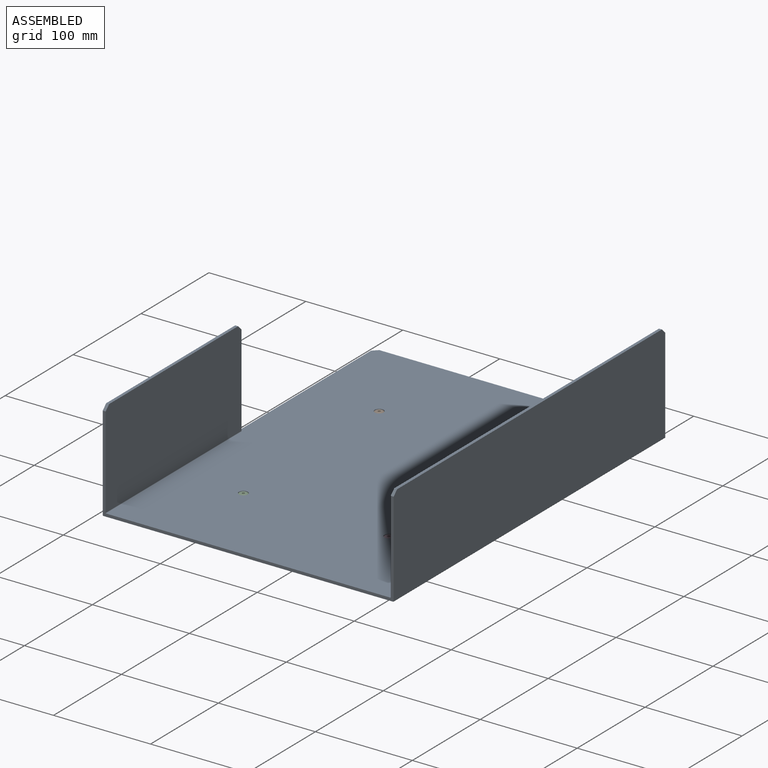
[diagram: assembled view]
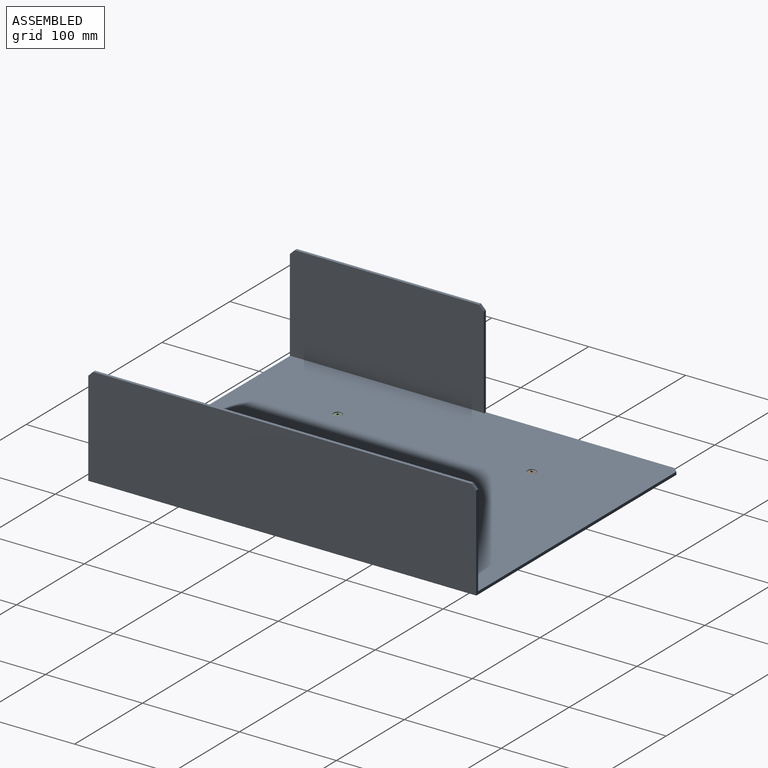
[diagram: assembled view, second angle]
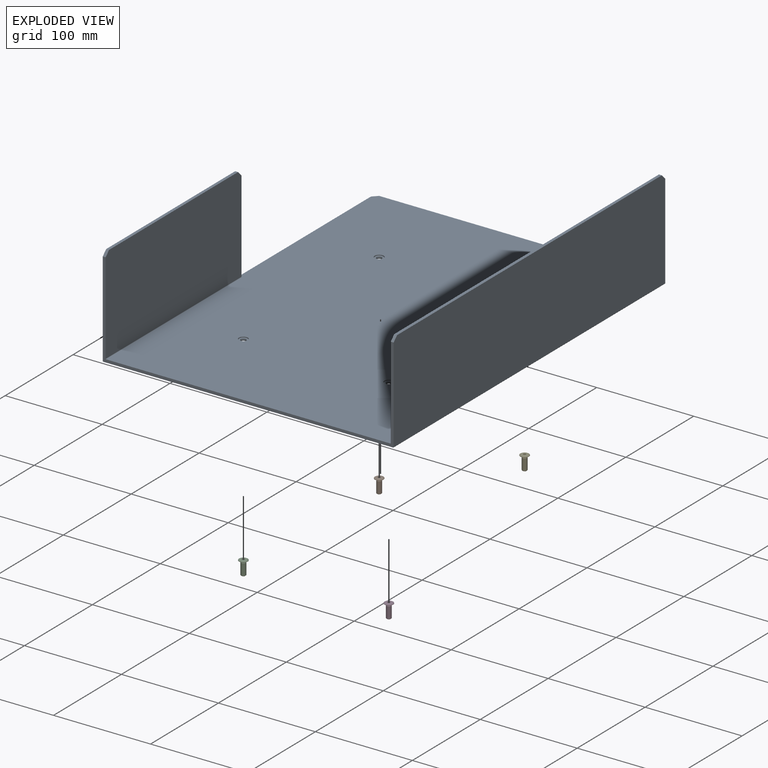
[diagram: exploded view]
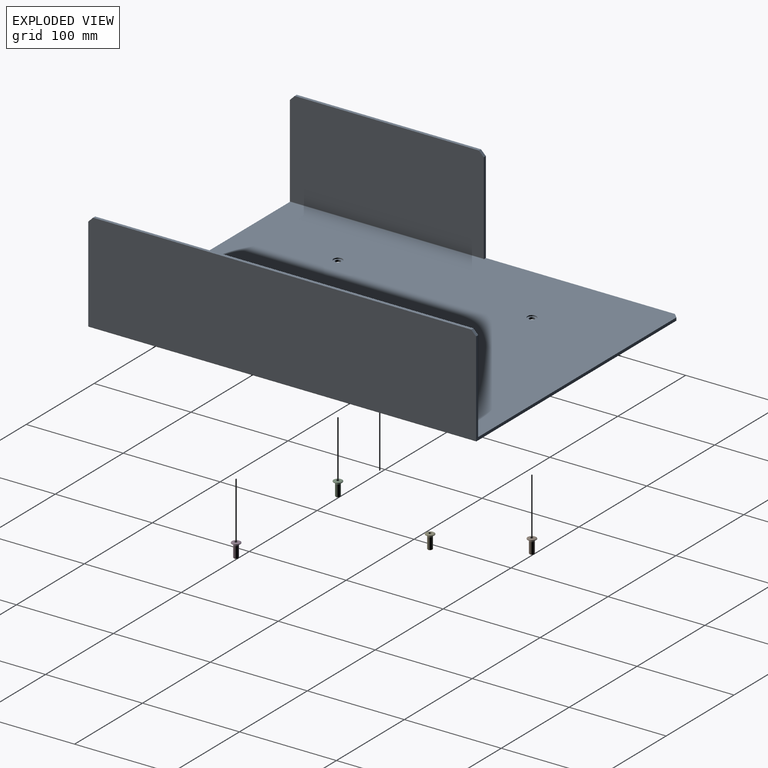
[diagram: exploded view, second angle]
ASSEMBLY  parts=5 mates=4
PART A: 32 faces, bbox 300x400x103 mm
  f0: cylinder r=2.75mm len=5.5mm, axis (0,0,-1), area 34.6mm2, adj f9,f31
  f1: cylinder r=2.75mm len=5.5mm, axis (0,0,-1), area 34.6mm2, adj f9,f29
  f2: cylinder r=2.75mm len=5.5mm, axis (0,0,-1), area 34.6mm2, adj f9,f27
  f3: cylinder r=2.75mm len=5.5mm, axis (0,0,-1), area 34.6mm2, adj f9,f25
  f4: plane 400x296.5mm, normal (0,0,1), area 117621.6mm2, adj f5,f7,f8,f12,f15,f20,f21,f24
  f5: plane 300x98mm, normal (0,-1,0), area 1470mm2, adj f4,f6,f8,f9,f10,f13,f18,f19
  f6: plane 400x102.5mm, normal (1,0,0), area 40975mm2, adj f5,f7,f11,f17,f18,f22
  f7: plane 295x98mm, normal (0,1,0), area 1170mm2, adj f4,f6,f9,f10,f15,f17,f21,f22
  f8: plane 395x102.5mm, normal (-1,0,0), area 20962.5mm2, adj f4,f5,f12,f14,f15,f16,f19,f23
  f9: plane 400x299mm, normal (0,0,-1), area 119494.8mm2, adj f0,f1,f2,f3,f5,f7,f15,f22
  f10: plane 400x99.5mm, normal (-1,0,0), area 39775mm2, adj f5,f7,f11,f17,f18,f21
  f11: plane 390x3mm, normal (0,0,1), area 1170mm2, adj f6,f10,f17,f18
  f12: plane 95x3.5mm, normal (0,1,0), area 285.1mm2, adj f4,f8,f13,f16,f20
  f13: plane 200x99.5mm, normal (1,0,0), area 19875mm2, adj f5,f12,f14,f16,f19,f20
  f14: plane 190x3mm, normal (0,0,1), area 570mm2, adj f8,f13,f16,f19
  f15: plane 5x5mm, normal (-0.71,0.71,0), area 21.1mm2, adj f4,f7,f8,f9,f23
  f16: plane 5x5mm, normal (0,0.71,0.71), area 21.2mm2, adj f8,f12,f13,f14
  f17: plane 5x5mm, normal (0,0.71,0.71), area 21.2mm2, adj f6,f7,f10,f11
  f18: plane 5x5mm, normal (0,-0.71,0.71), area 21.2mm2, adj f5,f6,f10,f11
  f19: plane 5x5mm, normal (0,-0.71,0.71), area 21.2mm2, adj f5,f8,f13,f14
  f20: cylinder r=0.5mm len=200mm, axis (0,1,0), area 157.1mm2, adj f4,f5,f12,f13
  f21: cylinder r=0.5mm len=400mm, axis (0,-1,0), area 314.2mm2, adj f4,f5,f7,f10
  f22: cylinder r=0.5mm len=400mm, axis (0,1,0), area 314.2mm2, adj f5,f6,f7,f9
  f23: cylinder r=0.5mm len=395.5mm, axis (0,-1,0), area 310.4mm2, adj f5,f8,f9,f15
  f24: cylinder r=4.6mm len=9.2mm, axis (0,0,1), area 28.9mm2, adj f4,f25
  f25: plane 9.2x9.2mm, normal (0,0,1), area 42.7mm2, adj f3,f24
  f26: cylinder r=4.6mm len=9.2mm, axis (0,0,1), area 28.9mm2, adj f4,f27
  f27: plane 9.2x9.2mm, normal (0,0,1), area 42.7mm2, adj f2,f26
  f28: cylinder r=4.6mm len=9.2mm, axis (0,0,1), area 28.9mm2, adj f4,f29
  f29: plane 9.2x9.2mm, normal (0,0,1), area 42.7mm2, adj f1,f28
  f30: cylinder r=4.6mm len=9.2mm, axis (0,0,1), area 28.9mm2, adj f4,f31
  f31: plane 9.2x9.2mm, normal (0,0,1), area 42.7mm2, adj f0,f30
PART B: 23 faces, bbox 15x9x9 mm
  f0: cone r=3.5mm half-angle=60deg, axis (1,0,0), area 29mm2, adj f1,f16
  f1: plane 7x7mm, normal (-1,0,0), area 33.1mm2, adj f0,f2,f3,f4,f5,f6,f7
  f2: plane 3x1.25mm, normal (0,-0.87,0.5), area 4.3mm2, adj f1,f3,f4,f19,f20
  f3: plane 3x1.25mm, normal (0,-0.87,-0.5), area 4.3mm2, adj f1,f2,f7,f20,f21
  f4: plane 3x1.44mm, normal (0,0,1), area 4.3mm2, adj f1,f2,f5,f17,f19
  f5: plane 3x1.25mm, normal (0,0.87,0.5), area 4.3mm2, adj f1,f4,f6,f17,f18
  f6: plane 3x1.25mm, normal (0,0.87,-0.5), area 4.3mm2, adj f1,f5,f7,f18,f22
  f7: plane 3x1.44mm, normal (0,0,-1), area 4.3mm2, adj f1,f3,f6,f21,f22
  f8: cone r=1.25mm half-angle=60deg, axis (-1,0,0), area 5.7mm2, adj f17,f18,f19,f20,f21,f22
  f9: plane 4.02x4.02mm, normal (1,0,0), area 12.7mm2, adj f10
  f10: cone r=2.5mm half-angle=45deg, axis (-1,0,0), area 9.8mm2, adj f9,f11
  f11: cylinder r=2.5mm len=11.71mm, axis (-1,0,0), area 183.9mm2, adj f10,f12
  f12: cone r=2.25mm half-angle=17deg, axis (1,0,0), area 12.5mm2, adj f11,f13
  f13: cylinder r=2.25mm len=4.51mm, axis (-1,0,0), area 11.3mm2, adj f12,f14
  f14: torus R=2.45mm, axis (1,0,0), area 4.6mm2, adj f13,f15
  f15: plane 9x9mm, normal (1,0,0), area 44.7mm2, adj f14,f16
  f16: cylinder r=4.5mm len=9mm, axis (-1,0,0), area 12mm2, adj f0,f15
  f17: plane 1.08x0.63mm, normal (-1,0,0), area 0.1mm2, adj f4,f5,f8
  f18: plane 1.25x0.36mm, normal (-1,0,0), area 0.1mm2, adj f5,f6,f8
  f19: plane 1.08x0.63mm, normal (-1,0,0), area 0.1mm2, adj f2,f4,f8
  f20: plane 1.25x0.36mm, normal (-1,0,0), area 0.1mm2, adj f2,f3,f8
  f21: plane 1.08x0.63mm, normal (-1,0,0), area 0.1mm2, adj f3,f7,f8
  f22: plane 1.08x0.63mm, normal (-1,0,0), area 0.1mm2, adj f6,f7,f8
PART C: same geometry as B
PART D: same geometry as B
PART E: same geometry as B
PLACE A t=(-44.7,7.75,-1.17)mm
PLACE B rot(axis=(0.71,0,-0.71),180deg) t=(-119.7,107.75,0.83)mm
PLACE C rot(axis=(0.71,0,-0.71),180deg) t=(-119.7,-92.25,0.83)mm
PLACE D rot(axis=(0.71,0,-0.71),180deg) t=(30.3,-92.25,0.83)mm
PLACE E rot(axis=(0.71,0,-0.71),180deg) t=(30.3,107.75,0.83)mm
MATE fastened C.f0 <-> A.f0  axis (0,0,1) through (-119.7,-92.25,1.83)mm
MATE fastened E.f0 <-> A.f2  axis (0,0,1) through (30.3,107.75,1.83)mm
MATE fastened B.f0 <-> A.f3  axis (0,0,1) through (-119.7,107.75,1.83)mm
MATE fastened D.f0 <-> A.f1  axis (0,0,1) through (30.3,-92.25,1.83)mm
